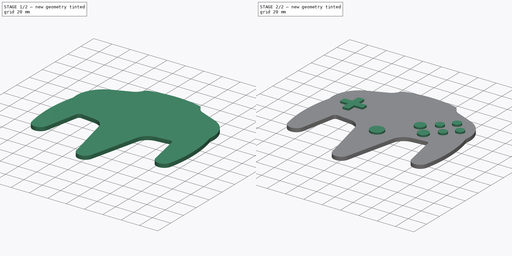
[diagram: build sequence overview — one tinted view per stage of 2, left to right]
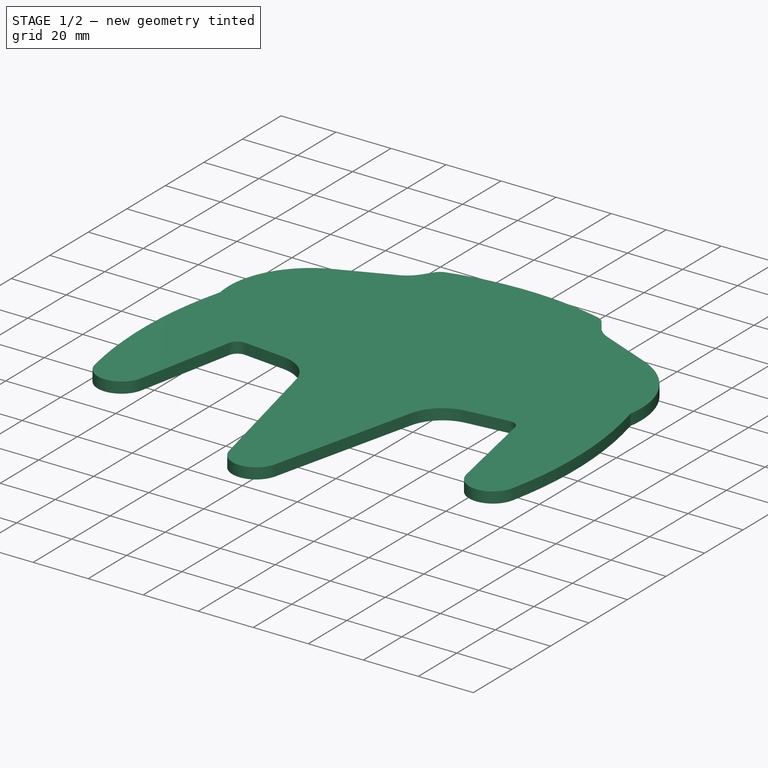
[diagram: stage 1 of 2 — iso view after this stage's code; geometry added in this stage tinted green]
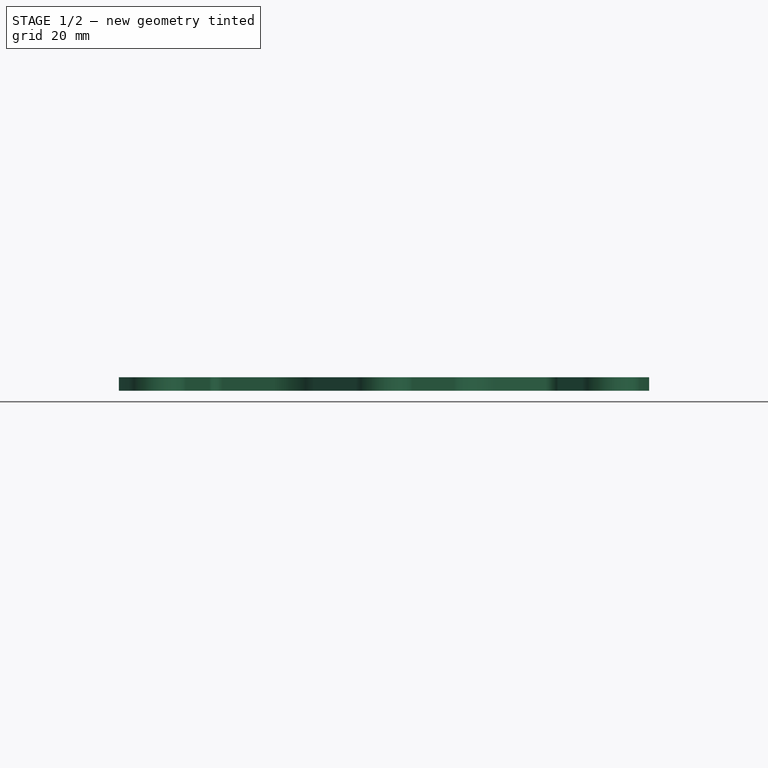
[diagram: stage 1 of 2 — front view after this stage's code; geometry added in this stage tinted green]
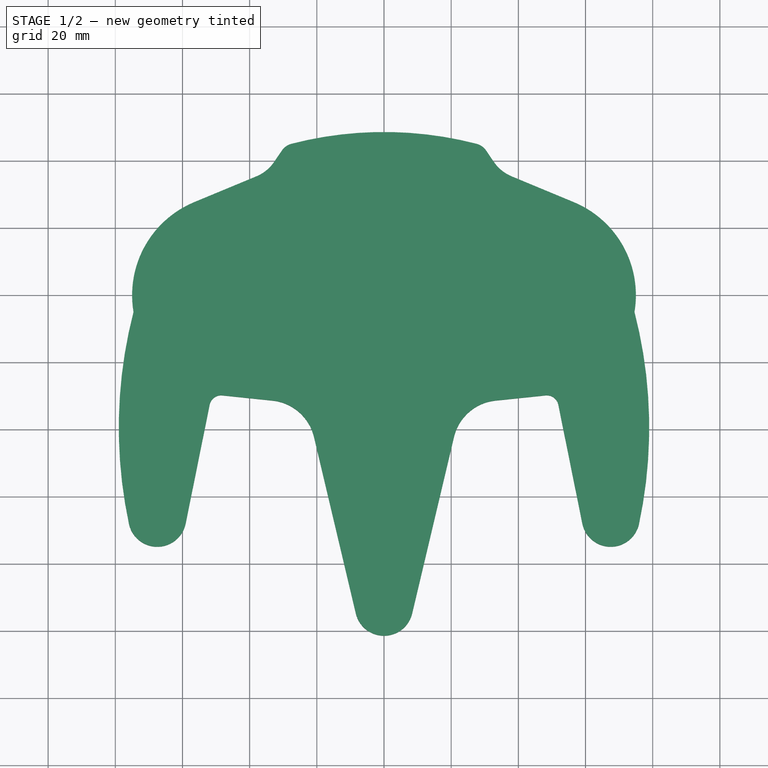
[diagram: stage 1 of 2 — top view after this stage's code; geometry added in this stage tinted green]
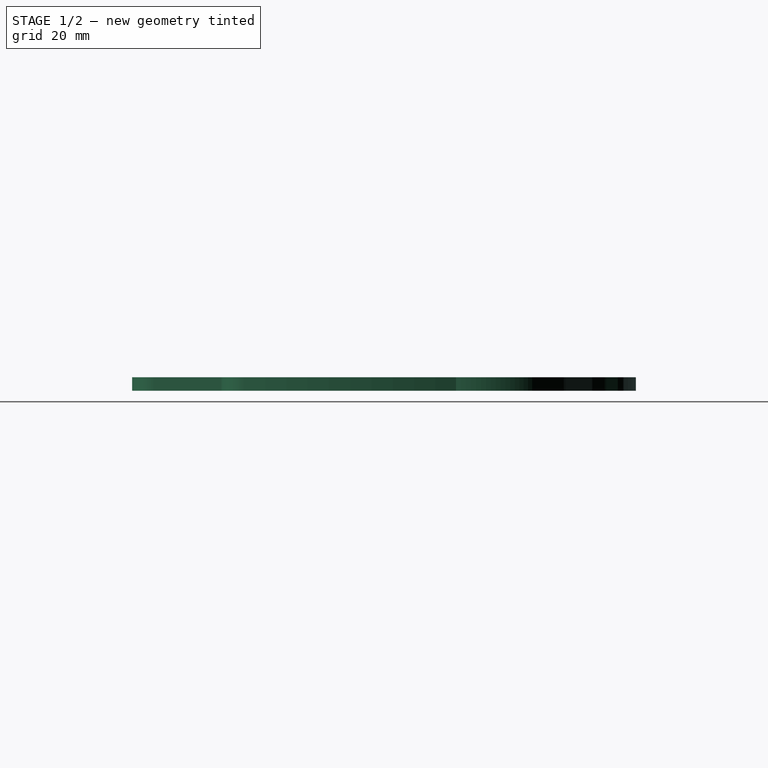
[diagram: stage 1 of 2 — right view after this stage's code; geometry added in this stage tinted green]
FCSTD DOCUMENT  (FreeCAD 0.21R33771 (Git))
Label: N64 Icon
License: All rights reserved
LicenseURL: http://en.wikipedia.org/wiki/All_rights_reserved
objects: Sketcher::SketchObject×2, PartDesign::Pad×2, PartDesign::Fillet×1, PartDesign::Body×1
note: 9 computed .brp shape members not serialized (recipe doc carries the construction recipe); baked Part::Feature solids carry a one-line shape summary decoded from their .brp

FEATURE [Sketcher::SketchObject] Sketch
  FullyConstrained = true
  MapMode = 5
  Support = -> [XY_Plane]
  sketch-geometry (44):
    g0: Circle CenterX=-45 CenterY=0 CenterZ=0 NormalX=0 NormalY=0 NormalZ=1 AngleXU=0 Radius=30
    g1: Circle CenterX=45 CenterY=0 CenterZ=0 NormalX=0 NormalY=0 NormalZ=1 AngleXU=0 Radius=30
    g2: LineSegment StartX=-45 StartY=0 StartZ=0 EndX=45 EndY=0 EndZ=0
    g3: Circle CenterX=-67.5 CenterY=-66.2854 CenterZ=0 NormalX=0 NormalY=0 NormalZ=1 AngleXU=0 Radius=8.625
    g4: Circle CenterX=67.5 CenterY=-66.2854 CenterZ=0 NormalX=0 NormalY=0 NormalZ=1 AngleXU=0 Radius=8.625
    g5: Circle CenterX=0 CenterY=-92.7854 CenterZ=0 NormalX=0 NormalY=0 NormalZ=1 AngleXU=0 Radius=8.625
    g6: LineSegment StartX=-45 StartY=0 StartZ=0 EndX=-67.5 EndY=-66.2854 EndZ=0
    g7: LineSegment StartX=45 StartY=0 StartZ=0 EndX=67.5 EndY=-66.2854 EndZ=0
    g8: LineSegment StartX=-67.5 StartY=-66.2854 StartZ=0 EndX=67.5 EndY=-66.2854 EndZ=0
    g9: LineSegment StartX=-75 StartY=0 StartZ=0 EndX=75 EndY=0 EndZ=0
    g10: LineSegment StartX=0 StartY=-101.41 StartZ=0 EndX=0 EndY=48.5896 EndZ=0
    g11: LineSegment StartX=0 StartY=-101.41 StartZ=0 EndX=67.5 EndY=-101.41 EndZ=0
    g12: LineSegment StartX=67.5 StartY=-101.41 StartZ=0 EndX=67.5 EndY=-74.9104 EndZ=0
    g13: LineSegment StartX=-8.39264 StartY=-94.7739 StartZ=0 EndX=-20.8381 EndY=-42.2477 EndZ=0
    g14: LineSegment StartX=8.39264 StartY=-94.7739 StartZ=0 EndX=20.8381 EndY=-42.2477 EndZ=0
    g15: Circle CenterX=0 CenterY=-37.3104 CenterZ=0 NormalX=0 NormalY=0 NormalZ=1 AngleXU=0 Radius=21.415
    g16: Circle CenterX=0 CenterY=-37.3104 CenterZ=0 NormalX=0 NormalY=0 NormalZ=1 AngleXU=0 Radius=15.915
    g17: LineSegment StartX=15.915 StartY=-37.3104 StartZ=0 EndX=21.415 EndY=-37.3104 EndZ=0
    g18: ArcOfCircle CenterX=-5e-16 CenterY=-92.7854 CenterZ=0 NormalX=0 NormalY=0 NormalZ=1 AngleXU=0 Radius=8.625 StartAngle=3.37424 EndAngle=6.05054
    g19: ArcOfCircle CenterX=-48.4717 CenterY=-33.3196 CenterZ=0 NormalX=0 NormalY=0 NormalZ=1 AngleXU=0 Radius=3.5 StartAngle=1.46698 EndAngle=2.94229
    g20: ArcOfCircle CenterX=-34.662 CenterY=-45.5231 CenterZ=0 NormalX=0 NormalY=0 NormalZ=1 AngleXU=0 Radius=14.2066 StartAngle=0.232647 EndAngle=1.46698
    g21: LineSegment StartX=-48.1089 StartY=-29.8385 StartZ=0 EndX=-33.1897 EndY=-31.3929 EndZ=0
    g22: LineSegment StartX=-51.9024 StartY=-32.6267 StartZ=0 EndX=-59.0457 EndY=-67.993 EndZ=0
    g23: ArcOfCircle CenterX=58.3782 CenterY=-39.4124 CenterZ=0 NormalX=0 NormalY=0 NormalZ=1 AngleXU=0 Radius=137.34 StartAngle=2.88833 EndAngle=3.35192
    g24: ArcOfCircle CenterX=-67.5 CenterY=-66.2854 CenterZ=0 NormalX=0 NormalY=0 NormalZ=1 AngleXU=0 Radius=8.625 StartAngle=3.35192 EndAngle=6.08388
    g25: LineSegment StartX=-74.5804 StartY=-5 StartZ=0 EndX=-74.5804 EndY=0 EndZ=0
    g26: LineSegment StartX=-74.5804 StartY=-5 StartZ=0 EndX=74.5804 EndY=-5 EndZ=0
    g27: ArcOfCircle CenterX=34.662 CenterY=-45.5231 CenterZ=0 NormalX=0 NormalY=0 NormalZ=1 AngleXU=0 Radius=14.2066 StartAngle=1.67461 EndAngle=2.90895
    g28: LineSegment StartX=33.1897 StartY=-31.3929 StartZ=0 EndX=48.1089 EndY=-29.8385 EndZ=0
    g29: LineSegment StartX=51.9024 StartY=-32.6267 StartZ=0 EndX=59.0457 EndY=-67.993 EndZ=0
    g30: ArcOfCircle CenterX=48.4717 CenterY=-33.3196 CenterZ=0 NormalX=0 NormalY=0 NormalZ=1 AngleXU=0 Radius=3.5 StartAngle=0.199301 EndAngle=1.67461
    g31: ArcOfCircle CenterX=-58.3782 CenterY=-39.4124 CenterZ=0 NormalX=0 NormalY=0 NormalZ=1 AngleXU=0 Radius=137.34 StartAngle=6.07286 EndAngle=6.53645
    g32: ArcOfCircle CenterX=67.5 CenterY=-66.2854 CenterZ=0 NormalX=0 NormalY=0 NormalZ=1 AngleXU=0 Radius=8.625 StartAngle=3.34089 EndAngle=6.07286
    g33: LineSegment StartX=-56.5 StartY=27.7083 StartZ=0 EndX=-38.0278 EndY=35.375 EndZ=0
    g34: LineSegment StartX=-32.6609 StartY=39.7496 StartZ=0 EndX=-29.375 EndY=44.5896 EndZ=0
    g35: LineSegment StartX=56.5 StartY=27.7083 StartZ=0 EndX=38.0278 EndY=35.375 EndZ=0
    g36: LineSegment StartX=32.6609 StartY=39.7496 StartZ=0 EndX=29.375 EndY=44.5896 EndZ=0
    g37: ArcOfCircle CenterX=-7.4e-15 CenterY=-61.2717 CenterZ=0 NormalX=0 NormalY=0 NormalZ=1 AngleXU=0 Radius=109.861 StartAngle=1.30012 EndAngle=1.84147
    g38: ArcOfCircle CenterX=-42.6612 CenterY=46.5389 CenterZ=0 NormalX=0 NormalY=0 NormalZ=1 AngleXU=0 Radius=12.0872 StartAngle=5.10579 EndAngle=5.68676
    g39: ArcOfCircle CenterX=42.6612 CenterY=46.5389 CenterZ=0 NormalX=0 NormalY=0 NormalZ=1 AngleXU=0 Radius=12.0872 StartAngle=3.73801 EndAngle=4.31899
    g40: LineSegment StartX=-29.375 StartY=44.5896 StartZ=0 EndX=29.375 EndY=44.5896 EndZ=0
    g41: LineSegment StartX=-56.5 StartY=27.7083 StartZ=0 EndX=56.5 EndY=27.7083 EndZ=0
    g42: ArcOfCircle CenterX=-45 CenterY=-1.6e-15 CenterZ=0 NormalX=0 NormalY=0 NormalZ=1 AngleXU=0 Radius=30 StartAngle=1.9642 EndAngle=3.30904
    g43: ArcOfCircle CenterX=45 CenterY=-5e-16 CenterZ=0 NormalX=0 NormalY=0 NormalZ=1 AngleXU=0 Radius=30 StartAngle=6.11574 EndAngle=7.46058
  constraints (119):
    c: PointOnObject(g0,g-1)
    c: Coincident(g2,g0)
    c: Coincident(g2,g1)
    c: Symmetric(g0,g1,g-1)
    c: PointOnObject(g5,g-2)
    c: Coincident(g6,g0)
    c: Coincident(g6,g3)
    c: Coincident(g7,g1)
    c: Coincident(g7,g4)
    c: Equal(g0,g1)
    c: Equal(g4,g3)
    c: Equal(g6,g7)
    c: Coincident(g8,g3)
    c: Coincident(g8,g4)
    c: Horizontal(g8)
    c: PointOnObject(g9,g0)
    c: PointOnObject(g9,g1)
    c: Horizontal(g9)
    c: Distance(g9) = 150
    c: Diameter(g1) = 60
    c: Diameter(g4) = 17.25
    c: Distance(g7) = 70
    c: Distance(g8) = 135
    c: Equal(g5,g4)
    c: Vertical(g10)
    c: Distance(g10) = 150
    c: PointOnObject(g10,g5)
    c: Perpendicular(g5,g10)
    c: Perpendicular(g0,g9)
    c: Coincident(g11,g10)
    c: Horizontal(g11)
    c: Coincident(g12,g11)
    c: PointOnObject(g12,g4)
    c: Vertical(g12)
    c: Perpendicular(g4,g12)
    c: Distance(g12) = 26.5
    c: PointOnObject(g13,g5)
    c: Tangent(g13,g5)
    c: PointOnObject(g14,g5)
    c: Tangent(g14,g5)
    c: PointOnObject(g15,g10)
    c: Tangent(g13,g15) = 1.5708
    c: Tangent(g14,g15) = -1.5708
    c: Coincident(g16,g15)
    c: Diameter(g16) = 31.83
    c: PointOnObject(g17,g16)
    c: PointOnObject(g17,g15)
    c: Horizontal(g17)
    c: Perpendicular(g16,g17)
    c: Distance(g17) = 5.5
    c: Coincident(g18,g13)
    c: Coincident(g18,g14)
    c: Equal(g18,g5)
    c: Distance(g10,g15) = 85.9
    c: Tangent(g20,g13) = -1.5708
    c: Tangent(g21,g20) = 1.5708
    c: Tangent(g21,g19) = 1.5708
    c: PointOnObject(g19,g0)
    c: Tangent(g21,g0)
    c: Distance(g21) = 15
    c: PointOnObject(g22,g3)
    c: Tangent(g22,g3)
    c: Tangent(g22,g19) = -1.5708
    c: Diameter(g19) = 7
    c: Tangent(g23,g3) = -1.5708
    c: Coincident(g24,g23)
    c: Coincident(g24,g22)
    c: Equal(g3,g24)
    c: PointOnObject(g23,g7)
    c: PointOnObject(g23,g0)
    c: Coincident(g25,g23)
    c: PointOnObject(g25,g9)
    c: Vertical(g25)
    c: Distance(g25) = 5
    c: Coincident(g26,g23)
    c: PointOnObject(g26,g1)
    c: Horizontal(g26)
    c: Tangent(g28,g30) = 1.5708
    c: Tangent(g29,g30) = 1.5708
    c: Equal(g19,g30)
    c: Equal(g21,g28)
    c: Tangent(g28,g27) = 1.5708
    c: Tangent(g27,g14) = 1.5708
    c: Tangent(g28,g1) = -1.5708
    c: Coincident(g31,g26)
    c: PointOnObject(g31,g6)
    c: Tangent(g31,g4) = -1.5708
    c: Coincident(g32,g29)
    c: Coincident(g32,g31)
    c: Equal(g32,g4)
    c: Coincident(g37,g34)
    c: Coincident(g37,g36)
    c: PointOnObject(g10,g37)
    c: Symmetric(g34,g36,g10)
    c: Tangent(g34,g38) = -1.5708
    c: Tangent(g33,g38) = -1.5708
    c: Tangent(g36,g39) = 1.5708
    c: Tangent(g35,g39) = 1.5708
    c: Tangent(g33,g0) = 1.5708
    c: Tangent(g35,g1) = -1.5708
    c: Coincident(g40,g34)
    c: Coincident(g40,g36)
    c: Distance(g40) = 58.75
    c: Equal(g38,g39)
    c: Equal(g36,g34)
    c: Equal(g33,g35)
    c: Distance(g36) = 5.85
    c: Distance(g35) = 20
    c: Coincident(g41,g33)
    c: Coincident(g41,g35)
    c: Distance(g41) = 113
    c: DistanceY(g36,g10) = 4
    c: Coincident(g42,g23)
    c: Coincident(g42,g33)
    c: Coincident(g43,g35)
    c: Coincident(g43,g31)
    c: Equal(g0,g42)
    c: Equal(g1,g43)
    c: Tangent(g29,g4) = -1.5708
FEATURE [PartDesign::Pad] Pad
  Direction = (0,0,1)
  Length = 4
  Length2 = 10
  Profile = -> Sketch
  ReferenceAxis = -> Sketch [N_Axis]
  Type = 0
FEATURE [Sketcher::SketchObject] Sketch001
  ExternalGeometry = -> [Pad]
  FullyConstrained = true
  MapMode = 5
  Placement = pos=(0,0,4) rot=(0,0,1;0rad)
  Support = -> [Pad]
  sketch-geometry (48):
    g0: Circle CenterX=0 CenterY=-37.3104 CenterZ=0 NormalX=0 NormalY=0 NormalZ=1 AngleXU=0 Radius=21.415
    g1: Circle CenterX=0 CenterY=-37.3104 CenterZ=0 NormalX=0 NormalY=0 NormalZ=1 AngleXU=0 Radius=7.25
    g2: Circle CenterX=-49.0783 CenterY=-4.0285 CenterZ=0 NormalX=0 NormalY=0 NormalZ=1 AngleXU=0 Radius=17.25
    g3: Circle CenterX=50.7394 CenterY=3.94588 CenterZ=0 NormalX=0 NormalY=0 NormalZ=1 AngleXU=0 Radius=11
    g4: Circle CenterX=37.8331 CenterY=-19.1591 CenterZ=0 NormalX=0 NormalY=0 NormalZ=1 AngleXU=0 Radius=5.75
    g5: Circle CenterX=26.1659 CenterY=-7.49188 CenterZ=0 NormalX=0 NormalY=0 NormalZ=1 AngleXU=0 Radius=5.75
    g6: LineSegment StartX=39.7394 StartY=3.94588 StartZ=0 EndX=50.7394 EndY=3.94588 EndZ=0
    g7: LineSegment StartX=50.7394 StartY=3.94588 StartZ=0 EndX=61.7394 EndY=3.94588 EndZ=0
    g8: LineSegment StartX=50.7394 StartY=3.94588 StartZ=0 EndX=50.7394 EndY=14.9459 EndZ=0
    g9: LineSegment StartX=50.7394 StartY=3.94588 StartZ=0 EndX=50.7394 EndY=-7.05412 EndZ=0
    g10: LineSegment StartX=26.1659 StartY=-7.49188 StartZ=0 EndX=37.8331 EndY=-19.1591 EndZ=0
    g11: Circle CenterX=50.7394 CenterY=14.9459 CenterZ=0 NormalX=0 NormalY=0 NormalZ=1 AngleXU=0 Radius=4.5
    g12: Circle CenterX=61.7394 CenterY=3.94588 CenterZ=0 NormalX=0 NormalY=0 NormalZ=1 AngleXU=0 Radius=4.5
    g13: Circle CenterX=50.7394 CenterY=-7.05412 CenterZ=0 NormalX=0 NormalY=0 NormalZ=1 AngleXU=0 Radius=4.5
    g14: Circle CenterX=39.7394 CenterY=3.94588 CenterZ=0 NormalX=0 NormalY=0 NormalZ=1 AngleXU=0 Radius=4.5
    g15: LineSegment StartX=-66.3283 StartY=-4.0285 StartZ=0 EndX=-74.7283 EndY=-4.0285 EndZ=0
    g16: LineSegment StartX=-49.0783 StartY=29.7215 StartZ=0 EndX=-49.0783 EndY=13.2215 EndZ=0
    g17: LineSegment StartX=-45.5783 StartY=-0.5285 StartZ=0 EndX=-45.5783 EndY=7.4715 EndZ=0
    g18: LineSegment StartX=-46.5783 StartY=8.4715 StartZ=0 EndX=-51.5783 EndY=8.4715 EndZ=0
    g19: LineSegment StartX=-52.5783 StartY=7.4715 StartZ=0 EndX=-52.5783 EndY=-0.5285 EndZ=0
    g20: LineSegment StartX=-52.5783 StartY=-0.5285 StartZ=0 EndX=-60.5783 EndY=-0.5285 EndZ=0
    g21: LineSegment StartX=-61.5783 StartY=-1.5285 StartZ=0 EndX=-61.5783 EndY=-6.5285 EndZ=0
    g22: LineSegment StartX=-60.5783 StartY=-7.5285 StartZ=0 EndX=-52.5783 EndY=-7.5285 EndZ=0
    g23: LineSegment StartX=-52.5783 StartY=-7.5285 StartZ=0 EndX=-52.5783 EndY=-15.5285 EndZ=0
    g24: LineSegment StartX=-51.5783 StartY=-16.5285 StartZ=0 EndX=-46.5783 EndY=-16.5285 EndZ=0
    g25: LineSegment StartX=-45.5783 StartY=-15.5285 StartZ=0 EndX=-45.5783 EndY=-7.5285 EndZ=0
    g26: LineSegment StartX=-45.5783 StartY=-7.5285 StartZ=0 EndX=-37.5783 EndY=-7.5285 EndZ=0
    g27: LineSegment StartX=-36.5783 StartY=-6.5285 StartZ=0 EndX=-36.5783 EndY=-1.5285 EndZ=0
    g28: LineSegment StartX=-37.5783 StartY=-0.5285 StartZ=0 EndX=-45.5783 EndY=-0.5285 EndZ=0
    g29: LineSegment StartX=-52.5783 StartY=-7.5285 StartZ=0 EndX=-45.5783 EndY=-7.5285 EndZ=0
    g30: LineSegment StartX=-45.5783 StartY=-7.5285 StartZ=0 EndX=-45.5783 EndY=-0.5285 EndZ=0
    g31: LineSegment StartX=-45.5783 StartY=-0.5285 StartZ=0 EndX=-52.5783 EndY=-0.5285 EndZ=0
    g32: LineSegment StartX=-52.5783 StartY=-0.5285 StartZ=0 EndX=-52.5783 EndY=-7.5285 EndZ=0
    g33: ArcOfCircle CenterX=-51.5783 CenterY=7.4715 CenterZ=0 NormalX=0 NormalY=0 NormalZ=1 AngleXU=0 Radius=1 StartAngle=1.5708 EndAngle=3.14159
    g34: ArcOfCircle CenterX=-46.5783 CenterY=7.4715 CenterZ=0 NormalX=0 NormalY=0 NormalZ=1 AngleXU=0 Radius=1 StartAngle=0 EndAngle=1.5708
    g35: ArcOfCircle CenterX=-37.5783 CenterY=-1.5285 CenterZ=0 NormalX=0 NormalY=0 NormalZ=1 AngleXU=0 Radius=1 StartAngle=0 EndAngle=1.5708
    g36: ArcOfCircle CenterX=-37.5783 CenterY=-6.5285 CenterZ=0 NormalX=0 NormalY=0 NormalZ=1 AngleXU=0 Radius=1 StartAngle=4.71239 EndAngle=6.28319
    g37: ArcOfCircle CenterX=-46.5783 CenterY=-15.5285 CenterZ=0 NormalX=0 NormalY=0 NormalZ=1 AngleXU=0 Radius=1 StartAngle=4.71239 EndAngle=6.28319
    g38: ArcOfCircle CenterX=-51.5783 CenterY=-15.5285 CenterZ=0 NormalX=0 NormalY=0 NormalZ=1 AngleXU=0 Radius=1 StartAngle=3.14159 EndAngle=4.71239
    g39: ArcOfCircle CenterX=-60.5783 CenterY=-6.5285 CenterZ=0 NormalX=0 NormalY=0 NormalZ=1 AngleXU=0 Radius=1 StartAngle=3.14159 EndAngle=4.71239
    g40: ArcOfCircle CenterX=-60.5783 CenterY=-1.5285 CenterZ=0 NormalX=0 NormalY=0 NormalZ=1 AngleXU=0 Radius=1 StartAngle=1.5708 EndAngle=3.14159
    g41: LineSegment StartX=50.7394 StartY=19.4459 StartZ=0 EndX=50.7394 EndY=29.4459 EndZ=0
    g42: LineSegment StartX=66.2394 StartY=3.94588 StartZ=0 EndX=74.7394 EndY=3.94588 EndZ=0
    g43: LineSegment StartX=37.8331 StartY=-24.9091 StartZ=0 EndX=37.8331 EndY=-30.9091 EndZ=0
    g44: LineSegment StartX=43.5831 StartY=-19.1591 StartZ=0 EndX=77.46 EndY=-19.1591 EndZ=0
    g45: LineSegment StartX=37.8331 StartY=-19.1591 StartZ=0 EndX=32.0831 EndY=-19.1591 EndZ=0
    g46: LineSegment StartX=42.0271 StartY=-15.2255 StartZ=0 EndX=47.4571 EndY=-10.1326 EndZ=0
    g47: LineSegment StartX=30.5629 StartY=-3.78669 StartZ=0 EndX=36.2982 EndY=1.04616 EndZ=0
  constraints (132):
    c: PointOnObject(g0,g-2)
    c: Tangent(g-3,g0) = 1.5708
    c: Coincident(g1,g0)
    c: Diameter(g1) = 14.5
    c: Coincident(g6,g3)
    c: Horizontal(g6)
    c: Coincident(g7,g3)
    c: Coincident(g8,g3)
    c: Coincident(g9,g3)
    c: Vertical(g9)
    c: Vertical(g8)
    c: Horizontal(g7)
    c: Coincident(g10,g5)
    c: Coincident(g10,g4)
    c: Diameter(g3) = 22
    c: Coincident(g11,g8)
    c: Diameter(g11) = 9
    c: PointOnObject(g11,g3)
    c: PointOnObject(g9,g3)
    c: PointOnObject(g7,g3)
    c: PointOnObject(g6,g3)
    c: Coincident(g12,g7)
    c: Coincident(g13,g9)
    c: Coincident(g14,g6)
    c: Equal(g11,g14)
    c: Equal(g14,g13)
    c: Equal(g13,g12)
    c: Distance(g10) = 16.5
    c: Equal(g5,g4)
    c: Diameter(g5) = 11.5
    c: PointOnObject(g15,g2)
    c: PointOnObject(g15,g-7)
    c: Horizontal(g15)
    c: Perpendicular(g2,g15)
    c: Distance(g15) = 8.4
    c: PointOnObject(g16,g-7)
    c: PointOnObject(g16,g2)
    c: Vertical(g16)
    c: Distance(g16) = 16.5
    c: Perpendicular(g2,g16)
    c: Diameter(g2) = 34.5
    c: Vertical(g17)
    c: Horizontal(g18)
    c: Vertical(g19)
    c: Coincident(g19,g20)
    c: Horizontal(g20)
    c: Vertical(g21)
    c: Coincident(g22,g23)
    c: Vertical(g23)
    c: Horizontal(g24)
    c: Vertical(g25)
    c: Coincident(g25,g26)
    c: Horizontal(g26)
    c: Vertical(g27)
    c: Coincident(g28,g17)
    c: Horizontal(g28)
    c: Horizontal(g22)
    c: Symmetric(g19,g25,g2)
    c: Coincident(g29,g30)
    c: Coincident(g30,g31)
    c: Coincident(g31,g32)
    c: Coincident(g32,g29)
    c: Horizontal(g29)
    c: Horizontal(g31)
    c: Vertical(g30)
    c: Vertical(g32)
    c: Coincident(g29,g22)
    c: Coincident(g30,g17)
    c: Coincident(g19,g31)
    c: Coincident(g29,g25)
    c: Equal(g18,g27)
    c: Equal(g19,g23)
    c: Equal(g28,g22)
    c: Equal(g20,g25)
    c: Tangent(g19,g33) = -1.5708
    c: Tangent(g18,g33) = -1.5708
    c: Tangent(g18,g34) = -1.5708
    c: Tangent(g17,g34) = -1.5708
    c: Tangent(g28,g35) = -1.5708
    c: Tangent(g27,g35) = -1.5708
    c: Tangent(g27,g36) = -1.5708
    c: Tangent(g26,g36) = -1.5708
    c: Tangent(g25,g37) = -1.5708
    c: Tangent(g24,g37) = -1.5708
    c: Tangent(g24,g38) = -1.5708
    c: Tangent(g23,g38) = -1.5708
    c: Tangent(g21,g39) = -1.5708
    c: Tangent(g22,g39) = -1.5708
    c: Tangent(g21,g40) = -1.5708
    c: Tangent(g20,g40) = -1.5708
    c: Equal(g33,g34)
    c: Equal(g34,g35)
    c: Equal(g35,g36)
    c: Equal(g36,g37)
    c: Equal(g37,g38)
    c: Equal(g38,g39)
    c: Equal(g39,g40)
    c: Distance(g17) = 8
    c: Distance(g18) = 5
    c: Radius(g34) = 1
    c: PointOnObject(g41,g11)
    c: PointOnObject(g41,g-6)
    c: PointOnObject(g42,g12)
    c: PointOnObject(g42,g-6)
    c: Horizontal(g42)
    c: Vertical(g41)
    c: Distance(g42) = 8.5
    c: Distance(g41) = 10
    c: Perpendicular(g12,g42)
    c: Perpendicular(g11,g41)
    c: PointOnObject(g43,g4)
    c: PointOnObject(g43,g-8)
    c: Perpendicular(g4,g43)
    c: Vertical(g43)
    c: PointOnObject(g44,g4)
    c: Horizontal(g44)
    c: PointOnObject(g44,g-9)
    c: Perpendicular(g4,g44)
    c: Coincident(g45,g4)
    c: PointOnObject(g45,g4)
    c: Horizontal(g45)
    c: Angle(g10,g45) = 0.785398
    c: PointOnObject(g46,g4)
    c: PointOnObject(g46,g13)
    c: Perpendicular(g13,g46)
    c: Perpendicular(g4,g46)
    c: PointOnObject(g47,g5)
    c: PointOnObject(g47,g14)
    c: Perpendicular(g14,g47)
    c: Perpendicular(g5,g47)
    c: Distance(g47) = 7.5
    c: Distance(g43) = 6
FEATURE [PartDesign::Fillet] Fillet
  Base = -> Pad [Edge38,Edge35]
  BaseFeature = -> Pad
  Radius = 5
  SupportTransform = false
  UseAllEdges = false
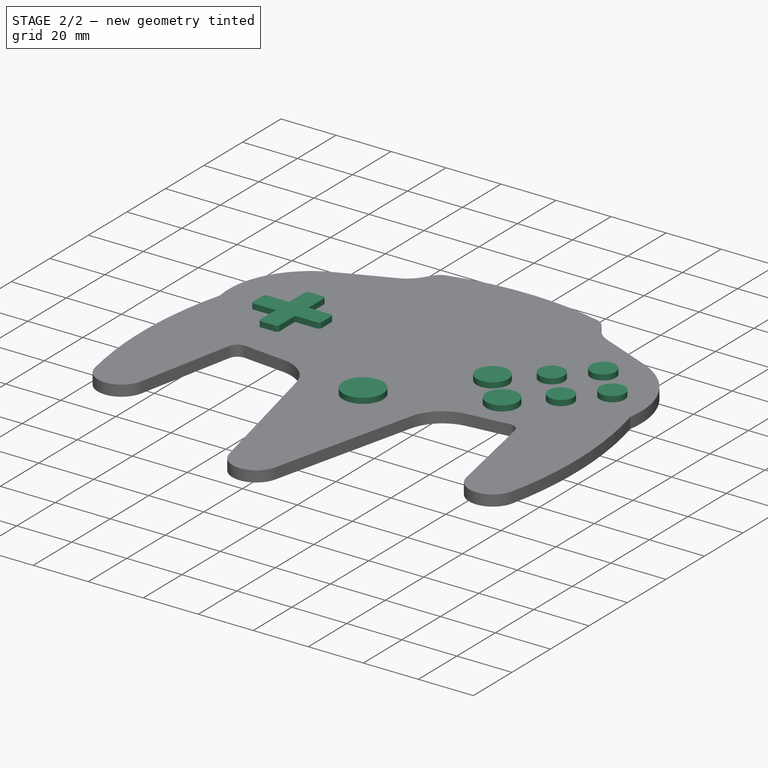
[diagram: stage 2 of 2 — iso view after this stage's code; geometry added in this stage tinted green]
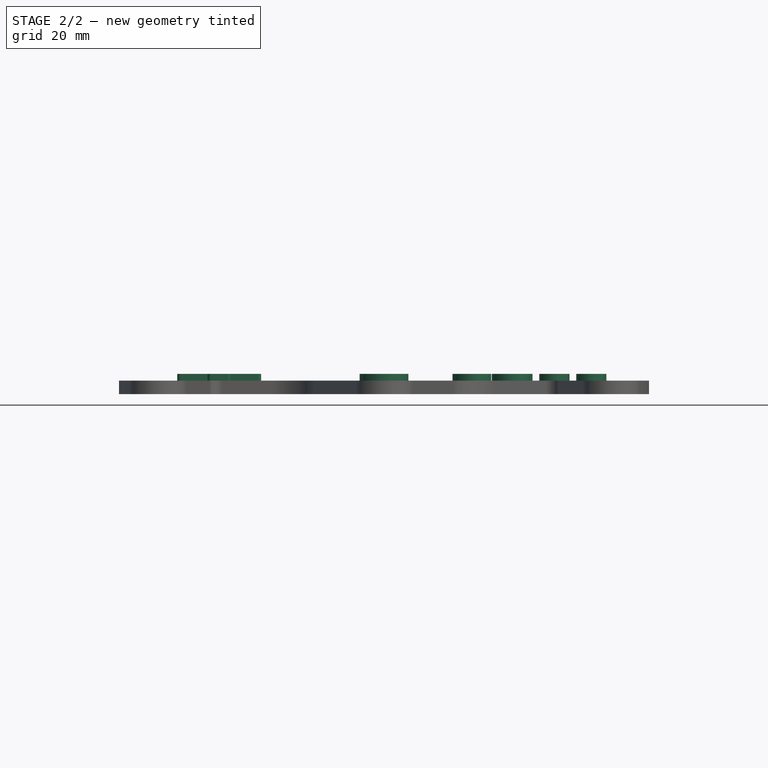
[diagram: stage 2 of 2 — front view after this stage's code; geometry added in this stage tinted green]
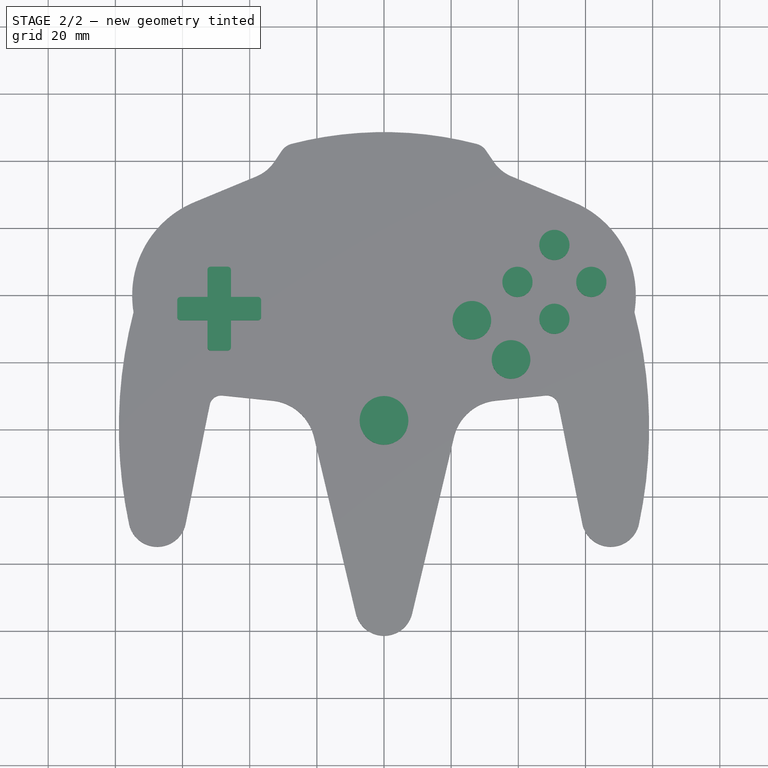
[diagram: stage 2 of 2 — top view after this stage's code; geometry added in this stage tinted green]
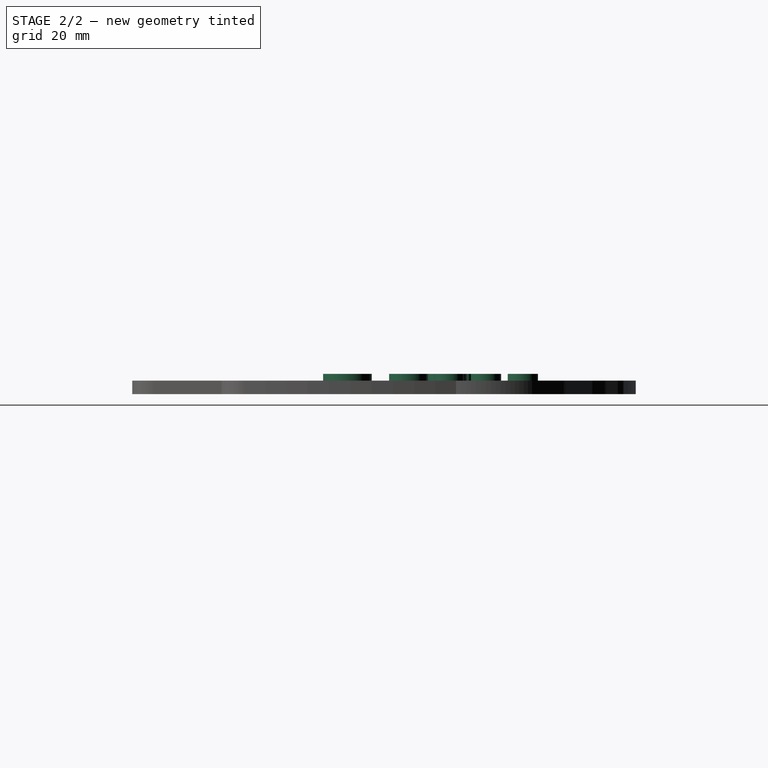
[diagram: stage 2 of 2 — right view after this stage's code; geometry added in this stage tinted green]
FEATURE [PartDesign::Pad] Pad001
  BaseFeature = -> Fillet
  Direction = (0,0,1)
  Length = 2
  Length2 = 10
  Profile = -> Sketch001
  ReferenceAxis = -> Sketch001 [N_Axis]
  Refine = true
  Type = 0
FEATURE [PartDesign::Body] Body
  Group = -> [Sketch,Pad,Sketch001,Fillet,Pad001]
  Origin = -> Origin
  Tip = -> Pad001
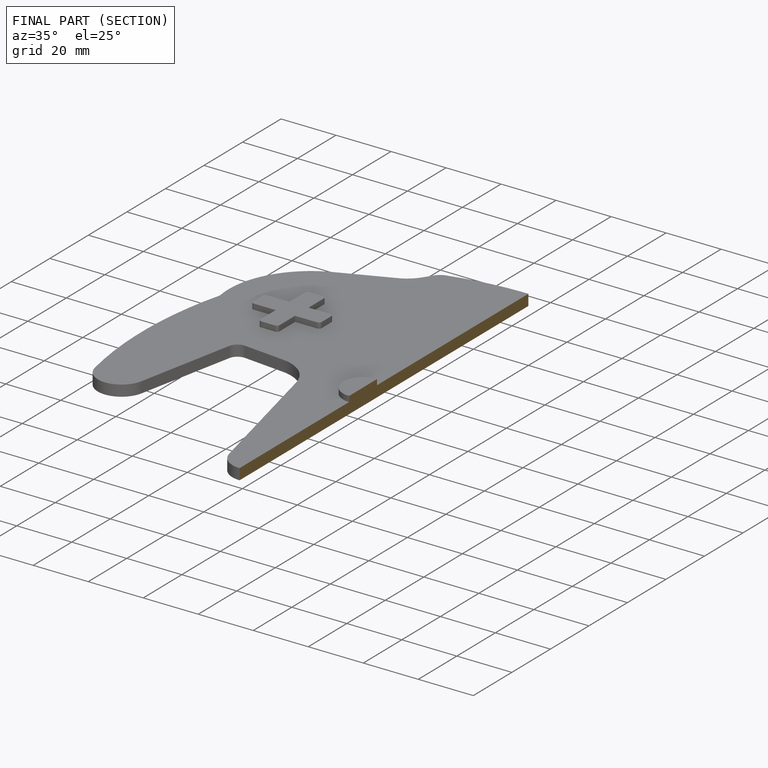
[diagram: finished part — half-section view (interior)]
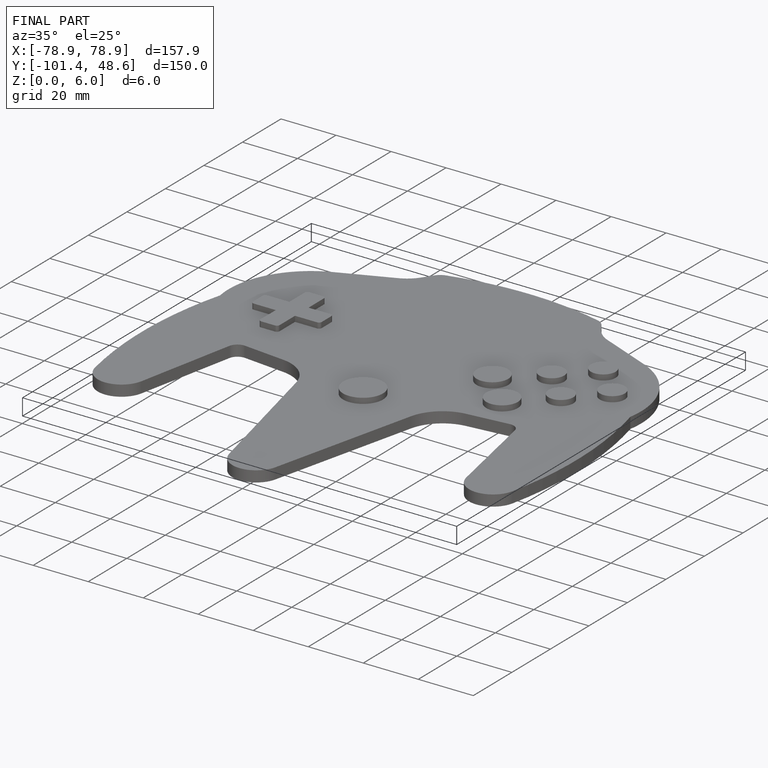
[diagram: finished part — iso view with bounding-box wireframe]
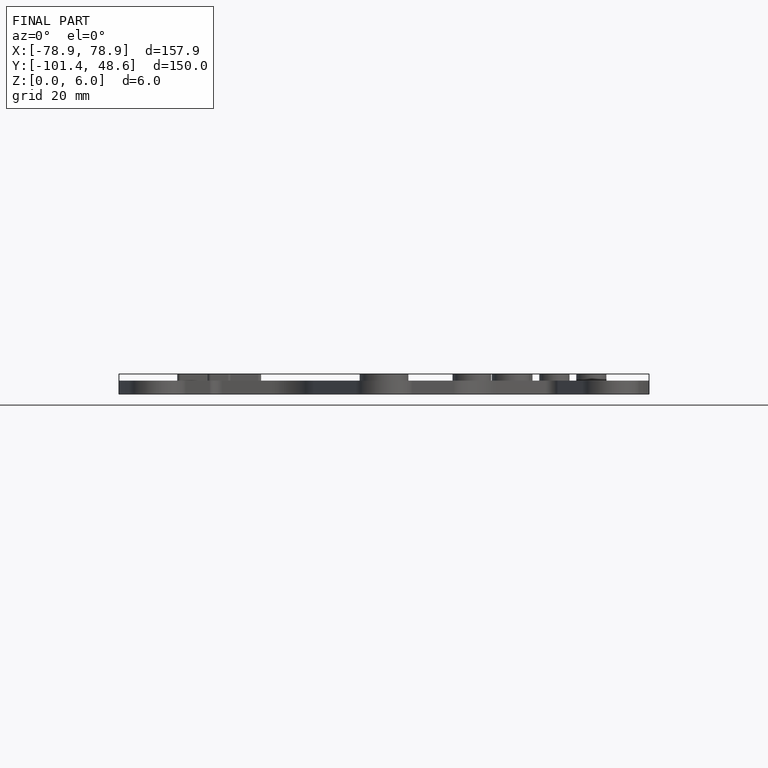
[diagram: finished part — front view with bounding-box wireframe]
